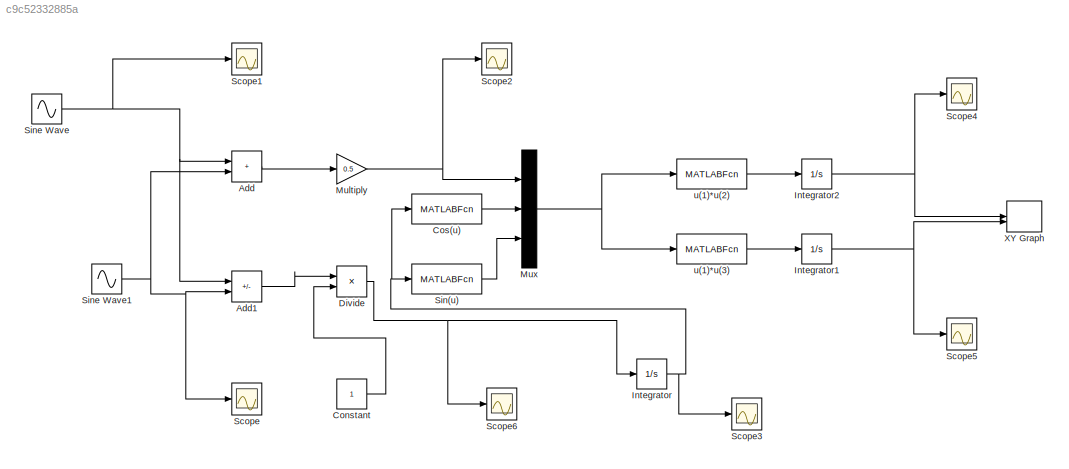
MODEL slx_c9c52332885a
KIND model
CONFIG AbsTol = auto
CONFIG EnableMultiTasking = off
CONFIG FixedStep = auto
CONFIG MaxStep = auto
CONFIG MinStep = auto
CONFIG RelTol = 1e-3
CONFIG SampleTimeConstraint = Unconstrained
CONFIG SolverName = VariableStepAuto
CONFIG StartTime = 0.0
CONFIG StopTime = 10
BLOCK [Sum] Add
  IconShape = rectangular
BLOCK [Sum] Add1
  IconShape = rectangular
  Inputs = +-
BLOCK [Constant] Constant
BLOCK [MATLABFcn] Cos(u)
  MATLABFcn = cos(u)
BLOCK [Product] Divide
  Inputs = */
BLOCK [Integrator] Integrator
  InitialCondition = pi/2
BLOCK [Integrator] Integrator1
BLOCK [Integrator] Integrator2
BLOCK [Gain] Multiply
  Gain = 0.5
BLOCK [Mux] Mux
  DisplayOption = bar
  Inputs = 3
BLOCK [Scope] Scope
  Floating = off
  NumInputPorts = 1
  ScopeSpecificationString = Simulink.scopes.TimeScopeBlockCfg('CurrentConfiguration', extmgr.ConfigurationSet(extmgr.Configuration('Core','General UI',true),extmgr.Configuration('Core','Source UI',true),extmgr.Configuration('Sources','WiredSimulink',true),extmgr.Configuration('Visuals','Time Domain',true,'SerializedDisplays',{struct('MinYLimReal','0.34147','MaxYLimReal','2.34147','YLabelReal','','MinYLimMag','0.34147','MaxYL...<+1392ch>
BLOCK [Scope] Scope1
  Floating = off
  NumInputPorts = 1
  ScopeSpecificationString = Simulink.scopes.TimeScopeBlockCfg('CurrentConfiguration', extmgr.ConfigurationSet(extmgr.Configuration('Core','General UI',true),extmgr.Configuration('Core','Source UI',true),extmgr.Configuration('Sources','WiredSimulink',true,'DataLoggingVariableName','ScopeData1'),extmgr.Configuration('Visuals','Time Domain',true,'SerializedDisplays',{struct('MinYLimReal','0.70711','MaxYLimReal','2.70711','YLabe...<+1430ch>
BLOCK [Scope] Scope2
  Floating = off
  NumInputPorts = 1
  ScopeSpecificationString = Simulink.scopes.TimeScopeBlockCfg('CurrentConfiguration', extmgr.ConfigurationSet(extmgr.Configuration('Core','General UI',true),extmgr.Configuration('Core','Source UI',true),extmgr.Configuration('Sources','WiredSimulink',true,'DataLoggingVariableName','ScopeData2'),extmgr.Configuration('Visuals','Time Domain',true,'SerializedDisplays',{struct('MinYLimReal','0.52429','MaxYLimReal','2.52429','YLabe...<+1429ch>
BLOCK [Scope] Scope3
  Floating = off
  NumInputPorts = 1
  ScopeSpecificationString = Simulink.scopes.TimeScopeBlockCfg('CurrentConfiguration', extmgr.ConfigurationSet(extmgr.Configuration('Core','General UI',true),extmgr.Configuration('Core','Source UI',true),extmgr.Configuration('Sources','WiredSimulink',true,'DataLoggingVariableName','ScopeData3'),extmgr.Configuration('Visuals','Time Domain',true,'SerializedDisplays',{struct('MinYLimReal','1.11375','MaxYLimReal','5.6842','YLabel...<+1392ch>
BLOCK [Scope] Scope4
  Floating = off
  NumInputPorts = 1
  ScopeSpecificationString = Simulink.scopes.TimeScopeBlockCfg('CurrentConfiguration', extmgr.ConfigurationSet(extmgr.Configuration('Core','General UI',true),extmgr.Configuration('Core','Source UI',true),extmgr.Configuration('Sources','WiredSimulink',true,'DataLoggingVariableName','ScopeData4'),extmgr.Configuration('Visuals','Time Domain',true,'SerializedDisplays',{struct('MinYLimReal','-9.37747','MaxYLimReal','1.04194','YLab...<+1399ch>
BLOCK [Scope] Scope5
  Floating = off
  NumInputPorts = 1
  ScopeSpecificationString = Simulink.scopes.TimeScopeBlockCfg('CurrentConfiguration', extmgr.ConfigurationSet(extmgr.Configuration('Core','General UI',true),extmgr.Configuration('Core','Source UI',true),extmgr.Configuration('Sources','WiredSimulink',true,'DataLoggingVariableName','ScopeData5'),extmgr.Configuration('Visuals','Time Domain',true,'SerializedDisplays',{struct('MinYLimReal','-2.83013','MaxYLimReal','4.94652','YLab...<+1399ch>
BLOCK [Scope] Scope6
  Floating = off
  NumInputPorts = 1
  ScopeSpecificationString = Simulink.scopes.TimeScopeBlockCfg('CurrentConfiguration', extmgr.ConfigurationSet(extmgr.Configuration('Core','General UI',true),extmgr.Configuration('Core','Source UI',true),extmgr.Configuration('Sources','WiredSimulink',true,'DataLoggingVariableName','ScopeData6'),extmgr.Configuration('Visuals','Time Domain',true,'SerializedDisplays',{struct('MinYLimReal','0.26564','MaxYLimReal','0.46564','YLabe...<+1427ch>
BLOCK [MATLABFcn] Sin(u)
  MATLABFcn = sin(u)
BLOCK [Sin] Sine Wave
  Bias = 1
  Phase = pi/4
  SampleTime = 10
  TimeSource = Use external signal
BLOCK [Sin] Sine Wave1
  Bias = 0.5
  Frequency = 2
  Phase = 1
  SampleTime = 10
  TimeSource = Use external signal
BLOCK [Record] XY Graph
  CompatibilityTag = XY
  FileSettingsInternal = {"entries":[{"content":{"excelSettings":{"content":{},"type":"Streamout.ExcelSettings"}},"type":"Streamout.FileSettingStorage","uuid":"478e911c-5aa9-4e8f-9f0d-157409c9e897"}],"packageUris":["http://schema.mathworks.com/mf0/streamout_blocks/R2020a"],"version":"1.0"}
  Layout = [1 1]
  SignalsInternal = {"entries":[{"content":{"signals":[{"content":{"blockPath":["untitled/XY Graph"],"channel":[],"dimensions":[1],"domain":"untitled/XY Graph","lineColor":"#a2142f","plots":[1],"port":1,"sid":[""],"signalID":5605,"signalName":"Integrator2"},"type":"RecordBlkView.Signal","uuid":"1fe1e2b7-bdc2-4471-bca0-ed8ebe25cf8f"},{"content":{"blockPath":["untitled/XY Graph"],"channel":[],"dimensions":[1],"domain":...<+371ch>
  VisualizationBindings = {"xyplotplugin":{"info":[{"series":[{"bindingParametersList":[{"parameter":"X-Axis","signalID":5605,"signalName":"Integrator2"},{"parameter":"Y-Axis","signalID":5609,"signalName":"Integrator1"}],"seriesID":4745}],"subplotID":1}]}}
BLOCK [MATLABFcn] u(1)*u(2)
  MATLABFcn = u(1)*u(2)
BLOCK [MATLABFcn] u(1)*u(3)
  MATLABFcn = u(1)*u(3)
LINE Add1:1 -> Divide:1
LINE Add:1 -> Multiply:1
LINE Constant:1 -> Divide:2
LINE Cos(u):1 -> Mux:2
NET Divide:1 -> Integrator:1, Scope6:1
NET Integrator1:1 -> Scope5:1, XY Graph:2
NET Integrator2:1 -> Scope4:1, XY Graph:1
NET Integrator:1 -> Cos(u):1, Scope3:1, Sin(u):1
NET Multiply:1 -> Mux:1, Scope2:1
NET Mux:1 -> u(1)*u(2):1, u(1)*u(3):1
LINE Sin(u):1 -> Mux:3
NET Sine Wave1:1 -> Add1:2, Add:2, Scope:1
NET Sine Wave:1 -> Add1:1, Add:1, Scope1:1
LINE u(1)*u(2):1 -> Integrator2:1
LINE u(1)*u(3):1 -> Integrator1:1
note: NET lines group one-source signal fan-out (src -> all destinations, sorted); 1:1 wires keep LINE
